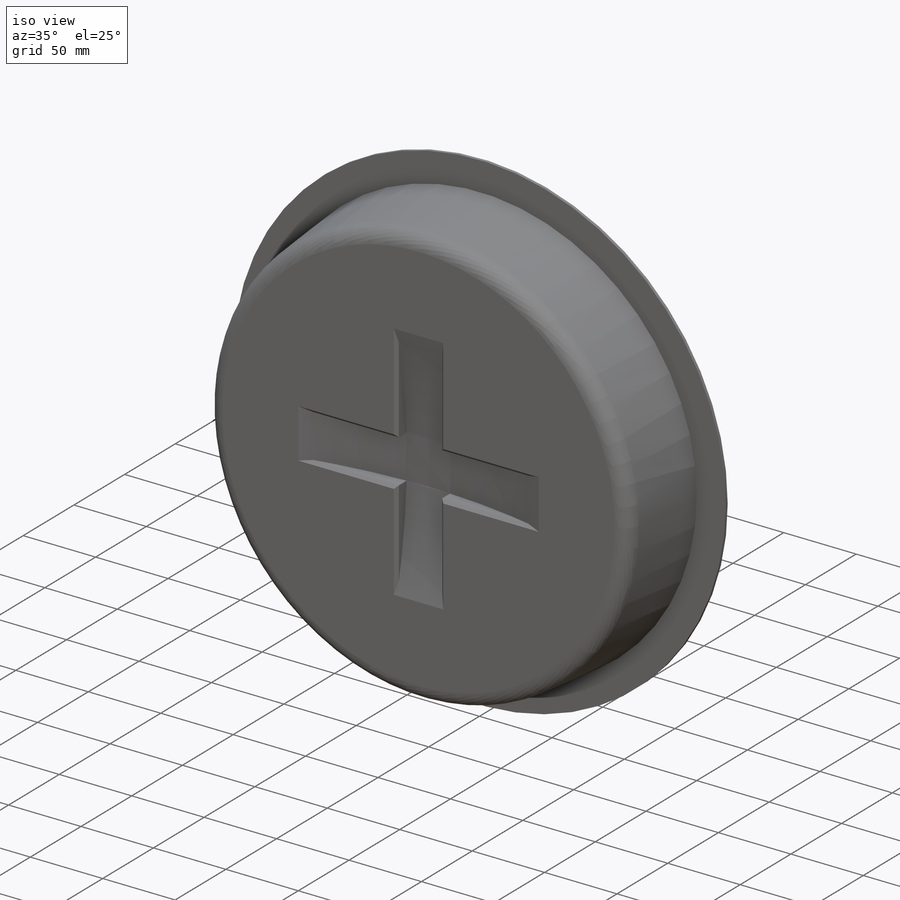
[diagram: iso view]
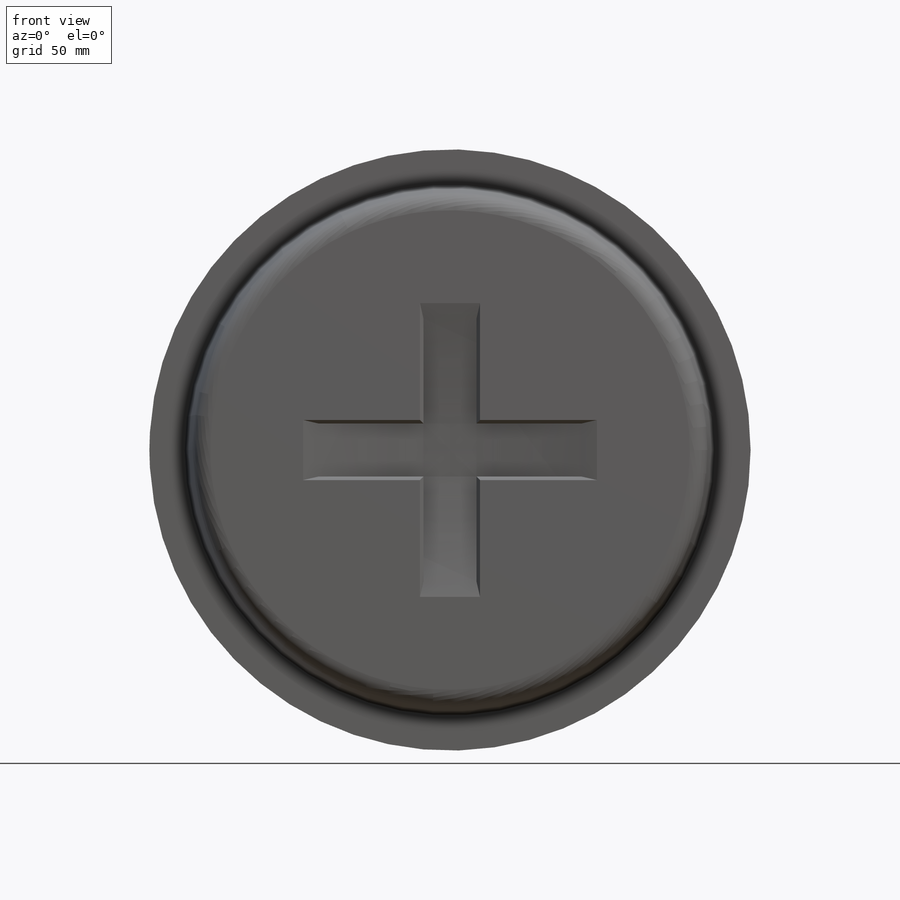
[diagram: front view]
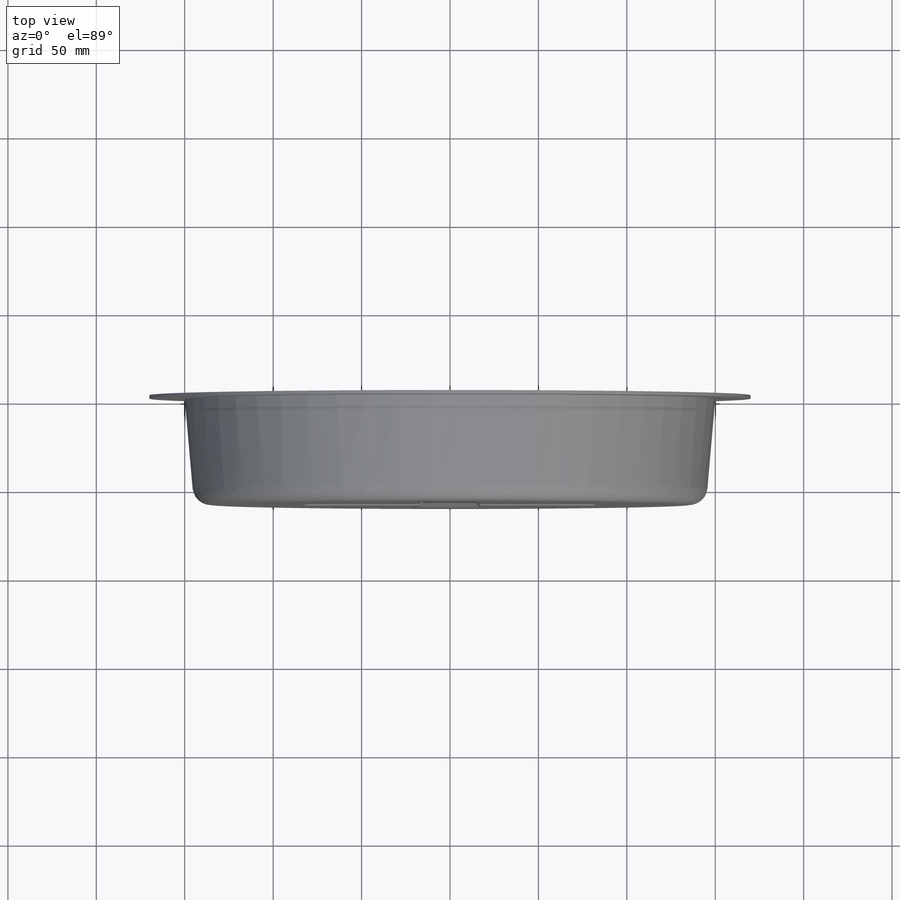
[diagram: top view]
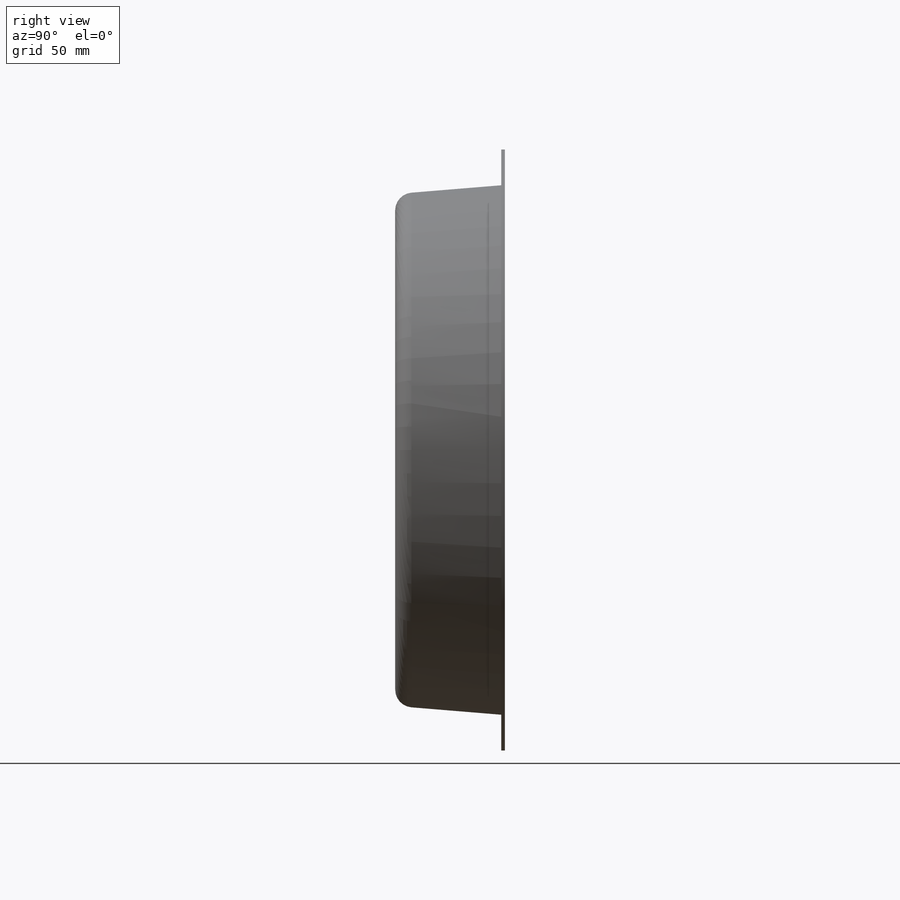
[diagram: right view]
SOLIDWORKS PART (.sldprt)
format: sldprt  version: not decoded by parser v0  size: 211,968 bytes
history: native  units: mm
features: sketch x3, extrude x2, material x1, cut_extrude x1, pattern_circular x1, fillet x1, chamfer x1, shell x1 (+13 scaffold rows collapsed)
feature tree (24):
  scaffold x13  (default folders/planes/origin — collapsed)
  material  "Material <not specified>"
  sketch  "Sketch2"  dims[D1=300.0mm]
  extrude  "Boss-Extrude1"  Depth=60mm
  sketch  "Sketch5"  dims[D1=700.0mm D2=50.0mm]
  cut_extrude  "Cut-Extrude1"  Depth=30mm
  pattern_circular  "CirPattern1"  Count=2 Angle=90deg
  fillet  "Fillet1"  Radius=10mm
  chamfer  "Chamfer1"  Distance=2mm Angle=45deg
  sketch  "Sketch6"  dims[D1=20.0mm]
  extrude  "Boss-Extrude2"  Depth=2mm
  shell  "Shell1"  Thickness=2mm
decode coverage: 10 of 10 modeling features carry decoded parameters
note: suppression state not decoded; provenance and decode notes live in map.json
